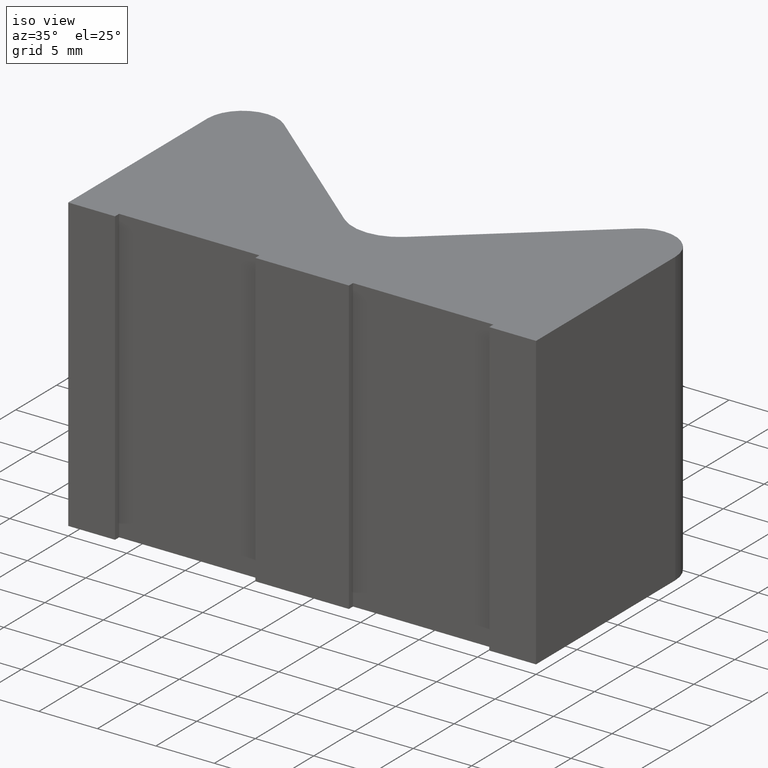
[diagram: clean part render]
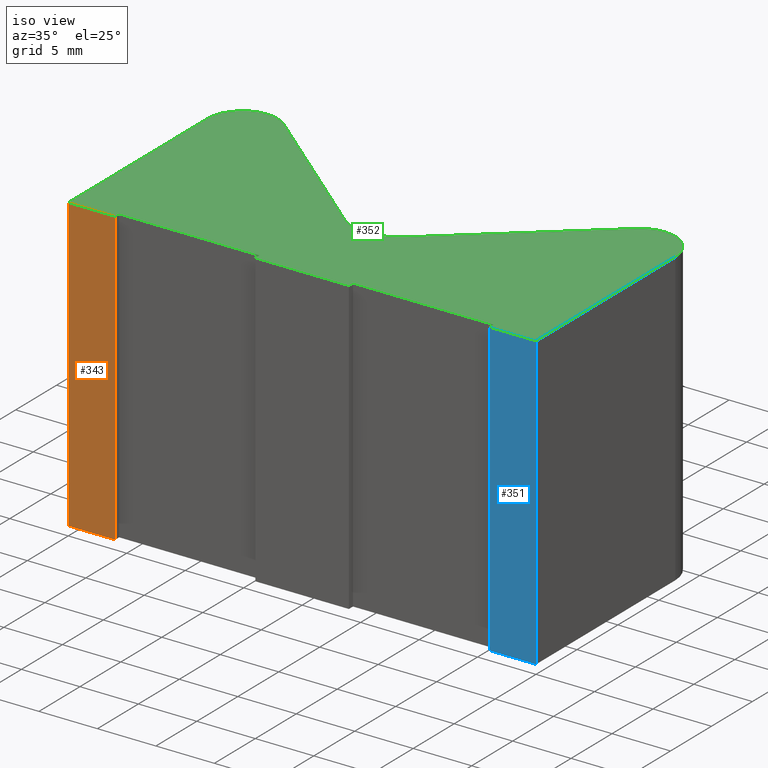
[diagram: same view with three faces highlighted in distinct colors, each labeled with its STEP entity id]
A machine part, iso view with three faces highlighted in distinct colors.
Their STEP definitions:

[orange] entity #343 — the highlighted planar face has unit normal (0, -1, 0).
#26=FACE_OUTER_BOUND('',#44,.T.);
#44=EDGE_LOOP('',(#268,#269,#270,#271));
#69=LINE('',#514,#111);
#87=LINE('',#555,#129);
#88=LINE('',#558,#130);
#89=LINE('',#559,#131);
#111=VECTOR('',#413,10.);
#129=VECTOR('',#451,10.);
#130=VECTOR('',#454,10.);
#131=VECTOR('',#455,10.);
#153=VERTEX_POINT('',#511);
#154=VERTEX_POINT('',#513);
#167=VERTEX_POINT('',#553);
#168=VERTEX_POINT('',#557);
#185=EDGE_CURVE('',#154,#153,#69,.T.);
#206=EDGE_CURVE('',#167,#153,#87,.T.);
#207=EDGE_CURVE('',#167,#168,#88,.T.);
#208=EDGE_CURVE('',#168,#154,#89,.T.);
#268=ORIENTED_EDGE('',*,*,#207,.T.);
#269=ORIENTED_EDGE('',*,*,#208,.T.);
#270=ORIENTED_EDGE('',*,*,#185,.T.);
#271=ORIENTED_EDGE('',*,*,#206,.F.);
#328=PLANE('',#387);
#343=ADVANCED_FACE('',(#26),#328,.T.);
#387=AXIS2_PLACEMENT_3D('',#556,#452,#453);
#413=DIRECTION('',(1.,0.,0.));
#451=DIRECTION('',(0.,0.,-1.));
#452=DIRECTION('center_axis',(0.,-1.,0.));
#453=DIRECTION('ref_axis',(0.,0.,-1.));
#454=DIRECTION('',(-1.,0.,0.));
#455=DIRECTION('',(0.,0.,-1.));
#511=CARTESIAN_POINT('',(-16.,0.,-12.5));
#513=CARTESIAN_POINT('',(-20.,0.,-12.5));
#514=CARTESIAN_POINT('',(-16.,0.,-12.5));
#553=CARTESIAN_POINT('',(-16.,0.,12.5));
#555=CARTESIAN_POINT('',(-16.,0.,0.));
#556=CARTESIAN_POINT('Origin',(-16.,0.,0.));
#557=CARTESIAN_POINT('',(-20.,0.,12.5));
#558=CARTESIAN_POINT('',(-16.,0.,12.5));
#559=CARTESIAN_POINT('',(-20.,0.,0.));

[blue] entity #351 — the highlighted planar face has unit normal (0, -1, 0).
#34=FACE_OUTER_BOUND('',#52,.T.);
#52=EDGE_LOOP('',(#300,#301,#302,#303));
#61=LINE('',#498,#103);
#75=LINE('',#531,#117);
#100=LINE('',#587,#142);
#101=LINE('',#589,#143);
#103=VECTOR('',#405,10.);
#117=VECTOR('',#427,10.);
#142=VECTOR('',#486,10.);
#143=VECTOR('',#489,10.);
#144=VERTEX_POINT('',#494);
#146=VERTEX_POINT('',#497);
#160=VERTEX_POINT('',#527);
#175=VERTEX_POINT('',#585);
#177=EDGE_CURVE('',#146,#144,#61,.T.);
#194=EDGE_CURVE('',#160,#146,#75,.T.);
#222=EDGE_CURVE('',#144,#175,#100,.T.);
#223=EDGE_CURVE('',#175,#160,#101,.T.);
#300=ORIENTED_EDGE('',*,*,#223,.T.);
#301=ORIENTED_EDGE('',*,*,#194,.T.);
#302=ORIENTED_EDGE('',*,*,#177,.T.);
#303=ORIENTED_EDGE('',*,*,#222,.T.);
#333=PLANE('',#398);
#351=ADVANCED_FACE('',(#34),#333,.T.);
#398=AXIS2_PLACEMENT_3D('',#588,#487,#488);
#405=DIRECTION('',(1.,0.,0.));
#427=DIRECTION('',(0.,0.,-1.));
#486=DIRECTION('',(0.,0.,1.));
#487=DIRECTION('center_axis',(0.,-1.,0.));
#488=DIRECTION('ref_axis',(0.,0.,-1.));
#489=DIRECTION('',(-1.,0.,0.));
#494=CARTESIAN_POINT('',(20.,0.,-12.5));
#497=CARTESIAN_POINT('',(16.,0.,-12.5));
#498=CARTESIAN_POINT('',(20.,0.,-12.5));
#527=CARTESIAN_POINT('',(16.,0.,12.5));
#531=CARTESIAN_POINT('',(16.,0.,0.));
#585=CARTESIAN_POINT('',(20.,0.,12.5));
#587=CARTESIAN_POINT('',(20.,0.,0.));
#588=CARTESIAN_POINT('Origin',(20.,0.,0.));
#589=CARTESIAN_POINT('',(20.,0.,12.5));

[green] entity #352 — the highlighted planar face has unit normal (0, 0, 1).
#35=FACE_OUTER_BOUND('',#53,.T.);
#53=EDGE_LOOP('',(#304,#305,#306,#307,#308,#309,#310,#311,#312,#313,#314,
#315,#316,#317,#318,#319));
#57=CIRCLE('',#390,3.);
#58=CIRCLE('',#393,4.00000000000002);
#59=CIRCLE('',#396,3.);
#73=LINE('',#529,#115);
#76=LINE('',#534,#118);
#78=LINE('',#538,#120);
#80=LINE('',#542,#122);
#82=LINE('',#546,#124);
#84=LINE('',#550,#126);
#86=LINE('',#554,#128);
#88=LINE('',#558,#130);
#90=LINE('',#562,#132);
#93=LINE('',#570,#135);
#96=LINE('',#578,#138);
#99=LINE('',#586,#141);
#101=LINE('',#589,#143);
#115=VECTOR('',#425,10.);
#118=VECTOR('',#430,10.);
#120=VECTOR('',#434,10.);
#122=VECTOR('',#438,10.);
#124=VECTOR('',#442,10.);
#126=VECTOR('',#446,10.);
#128=VECTOR('',#450,10.);
#130=VECTOR('',#454,10.);
#132=VECTOR('',#458,10.);
#135=VECTOR('',#467,10.);
#138=VECTOR('',#476,10.);
#141=VECTOR('',#485,10.);
#143=VECTOR('',#489,10.);
#160=VERTEX_POINT('',#527);
#161=VERTEX_POINT('',#528);
#162=VERTEX_POINT('',#533);
#163=VERTEX_POINT('',#537);
#164=VERTEX_POINT('',#541);
#165=VERTEX_POINT('',#545);
#166=VERTEX_POINT('',#549);
#167=VERTEX_POINT('',#553);
#168=VERTEX_POINT('',#557);
#169=VERTEX_POINT('',#561);
#170=VERTEX_POINT('',#565);
#171=VERTEX_POINT('',#569);
#172=VERTEX_POINT('',#573);
#173=VERTEX_POINT('',#577);
#174=VERTEX_POINT('',#581);
#175=VERTEX_POINT('',#585);
#192=EDGE_CURVE('',#160,#161,#73,.T.);
#195=EDGE_CURVE('',#161,#162,#76,.T.);
#197=EDGE_CURVE('',#162,#163,#78,.T.);
#199=EDGE_CURVE('',#163,#164,#80,.T.);
#201=EDGE_CURVE('',#164,#165,#82,.T.);
#203=EDGE_CURVE('',#165,#166,#84,.T.);
#205=EDGE_CURVE('',#166,#167,#86,.T.);
#207=EDGE_CURVE('',#167,#168,#88,.T.);
#209=EDGE_CURVE('',#168,#169,#90,.T.);
#211=EDGE_CURVE('',#169,#170,#57,.T.);
#213=EDGE_CURVE('',#170,#171,#93,.T.);
#215=EDGE_CURVE('',#171,#172,#58,.T.);
#217=EDGE_CURVE('',#172,#173,#96,.T.);
#219=EDGE_CURVE('',#173,#174,#59,.T.);
#221=EDGE_CURVE('',#174,#175,#99,.T.);
#223=EDGE_CURVE('',#175,#160,#101,.T.);
#304=ORIENTED_EDGE('',*,*,#192,.F.);
#305=ORIENTED_EDGE('',*,*,#223,.F.);
#306=ORIENTED_EDGE('',*,*,#221,.F.);
#307=ORIENTED_EDGE('',*,*,#219,.F.);
#308=ORIENTED_EDGE('',*,*,#217,.F.);
#309=ORIENTED_EDGE('',*,*,#215,.F.);
#310=ORIENTED_EDGE('',*,*,#213,.F.);
#311=ORIENTED_EDGE('',*,*,#211,.F.);
#312=ORIENTED_EDGE('',*,*,#209,.F.);
#313=ORIENTED_EDGE('',*,*,#207,.F.);
#314=ORIENTED_EDGE('',*,*,#205,.F.);
#315=ORIENTED_EDGE('',*,*,#203,.F.);
#316=ORIENTED_EDGE('',*,*,#201,.F.);
#317=ORIENTED_EDGE('',*,*,#199,.F.);
#318=ORIENTED_EDGE('',*,*,#197,.F.);
#319=ORIENTED_EDGE('',*,*,#195,.F.);
#334=PLANE('',#399);
#352=ADVANCED_FACE('',(#35),#334,.T.);
#390=AXIS2_PLACEMENT_3D('',#566,#462,#463);
#393=AXIS2_PLACEMENT_3D('',#574,#471,#472);
#396=AXIS2_PLACEMENT_3D('',#582,#480,#481);
#399=AXIS2_PLACEMENT_3D('',#590,#490,#491);
#425=DIRECTION('',(0.,1.,0.));
#430=DIRECTION('',(-1.,0.,0.));
#434=DIRECTION('',(0.,-1.,0.));
#438=DIRECTION('',(-1.,-3.08148791101958E-32,0.));
#442=DIRECTION('',(0.,1.,0.));
#446=DIRECTION('',(-1.,0.,0.));
#450=DIRECTION('',(0.,-1.,0.));
#454=DIRECTION('',(-1.,0.,0.));
#458=DIRECTION('',(0.,1.,0.));
#462=DIRECTION('center_axis',(0.,0.,-1.));
#463=DIRECTION('ref_axis',(-0.641821041507101,-0.766854452082493,0.));
#467=DIRECTION('',(0.766854452082493,-0.641821041507101,0.));
#471=DIRECTION('center_axis',(0.,0.,1.));
#472=DIRECTION('ref_axis',(-0.641821041507101,-0.766854452082493,0.));
#476=DIRECTION('',(0.766854452082493,0.641821041507101,0.));
#480=DIRECTION('center_axis',(0.,0.,-1.));
#481=DIRECTION('ref_axis',(-1.,0.,0.));
#485=DIRECTION('',(0.,-1.,0.));
#489=DIRECTION('',(-1.,0.,0.));
#490=DIRECTION('center_axis',(0.,0.,1.));
#491=DIRECTION('ref_axis',(1.,0.,0.));
#527=CARTESIAN_POINT('',(16.,0.,12.5));
#528=CARTESIAN_POINT('',(16.,0.5,12.5));
#529=CARTESIAN_POINT('',(16.,0.,12.5));
#533=CARTESIAN_POINT('',(4.,0.5,12.5));
#534=CARTESIAN_POINT('',(16.,0.5,12.5));
#537=CARTESIAN_POINT('',(4.,0.,12.5));
#538=CARTESIAN_POINT('',(4.,0.5,12.5));
#541=CARTESIAN_POINT('',(-4.,-2.46519032881566E-31,12.5));
#542=CARTESIAN_POINT('',(4.,0.,12.5));
#545=CARTESIAN_POINT('',(-4.,0.5,12.5));
#546=CARTESIAN_POINT('',(-4.,-2.46519032881566E-31,12.5));
#549=CARTESIAN_POINT('',(-16.,0.5,12.5));
#550=CARTESIAN_POINT('',(-4.,0.5,12.5));
#553=CARTESIAN_POINT('',(-16.,0.,12.5));
#554=CARTESIAN_POINT('',(-16.,0.5,12.5));
#557=CARTESIAN_POINT('',(-20.,0.,12.5));
#558=CARTESIAN_POINT('',(-16.,0.,12.5));
#561=CARTESIAN_POINT('',(-20.,17.,12.5));
#562=CARTESIAN_POINT('',(-20.,0.,12.5));
#565=CARTESIAN_POINT('',(-15.0745368754787,19.3005633562475,12.5));
#566=CARTESIAN_POINT('Origin',(-17.,17.,12.5));
#569=CARTESIAN_POINT('',(-2.5672841660284,8.83258219167003,12.5));
#570=CARTESIAN_POINT('',(-15.0745368754787,19.3005633562475,12.5));
#573=CARTESIAN_POINT('',(2.5672841660284,8.83258219167003,12.5));
#574=CARTESIAN_POINT('Origin',(0.,11.9,12.5));
#577=CARTESIAN_POINT('',(15.0745368754787,19.3005633562475,12.5));
#578=CARTESIAN_POINT('',(2.5672841660284,8.83258219167003,12.5));
#581=CARTESIAN_POINT('',(20.,17.,12.5));
#582=CARTESIAN_POINT('Origin',(17.,17.,12.5));
#585=CARTESIAN_POINT('',(20.,0.,12.5));
#586=CARTESIAN_POINT('',(20.,17.,12.5));
#589=CARTESIAN_POINT('',(20.,0.,12.5));
#590=CARTESIAN_POINT('Origin',(-1.29236898960272E-15,8.34087403987449,12.5));